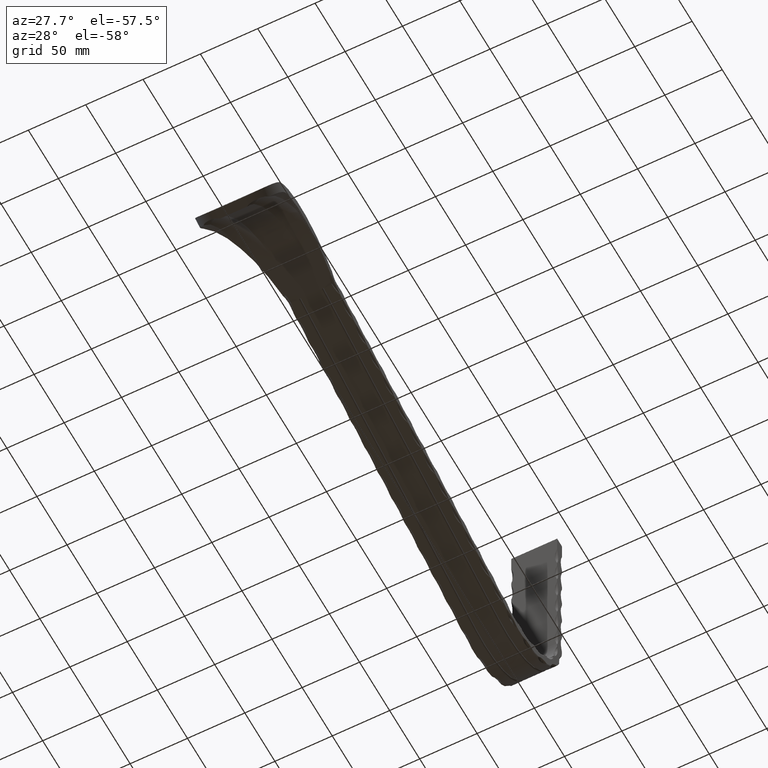
[diagram: clean part render]
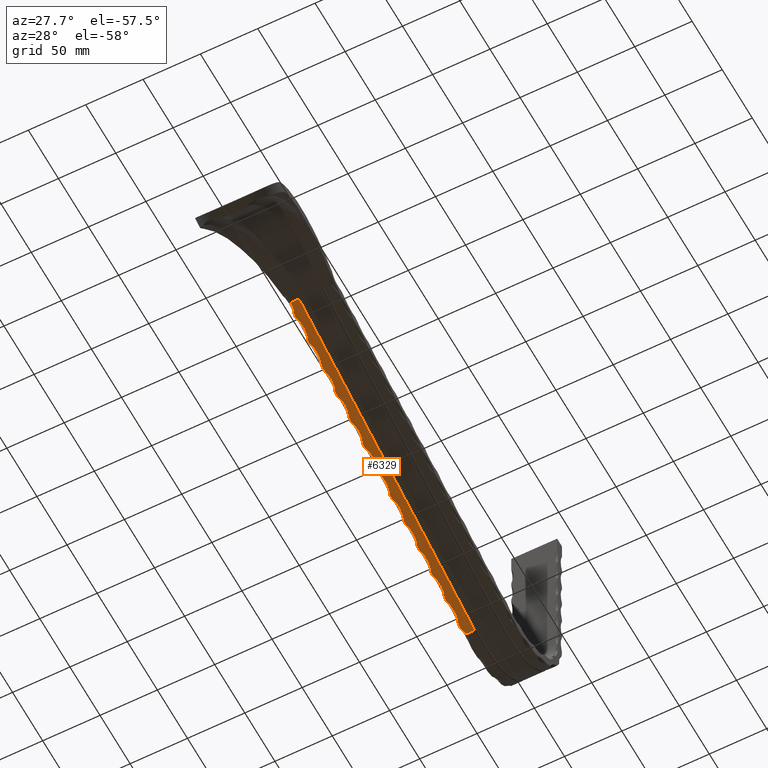
[diagram: same view with one face highlighted and labeled with its STEP entity id]
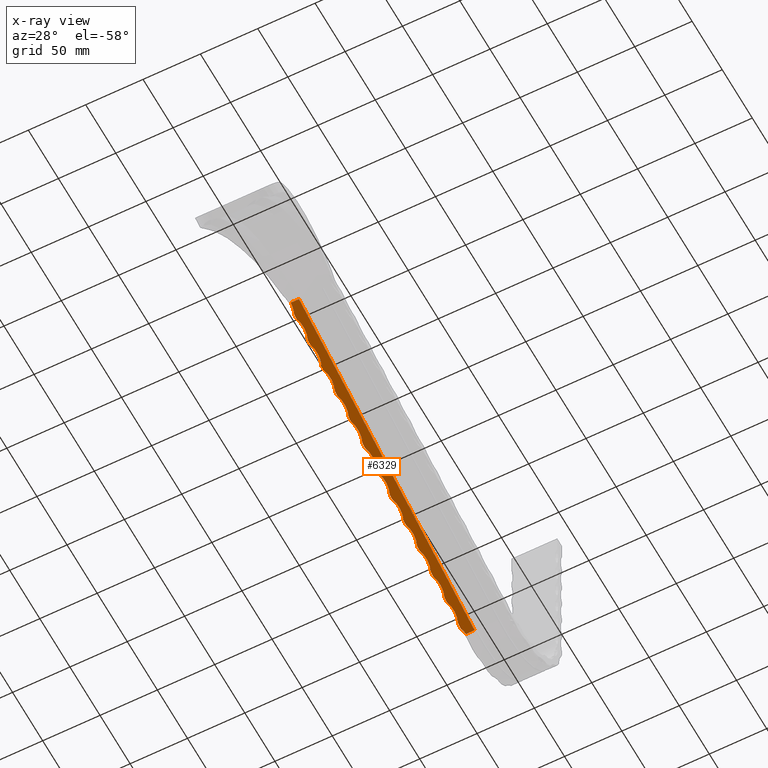
[diagram: x-ray of the same camera — body ghosted, the highlighted face saturated]
A machine part, auxiliary view. The second image highlights one B-rep face of the part: STEP entity #6329.
The next image is the same camera in x-ray: the body ghosted, the highlighted face saturated — about 0% of this face is hidden behind the body in this view.
In plain terms, the highlighted planar face has unit normal (-0, 0.2342, 0.9722).
Its self-contained STEP definition (entity closure, byte-faithful):
#49 = DIRECTION ( 'NONE',  ( -0.0000000000000000000, 0.2341632147695032200, 0.9721972993424801100 ) ) ;
#86 = DIRECTION ( 'NONE',  ( -0.0000000000000000000, 0.2341632147695032200, 0.9721972993424801100 ) ) ;
#180 = DIRECTION ( 'NONE',  ( 0.0000000000000000000, -0.9721972993424798900, 0.2341632147695030800 ) ) ;
#226 = VERTEX_POINT ( 'NONE', #2308 ) ;
#266 = DIRECTION ( 'NONE',  ( 0.0000000000000000000, -0.9721972993424798900, 0.2341632147695033000 ) ) ;
#456 = LINE ( 'NONE', #5302, #3446 ) ;
#465 = DIRECTION ( 'NONE',  ( 1.000000000000000000, 0.0000000000000000000, 0.0000000000000000000 ) ) ;
#500 = CARTESIAN_POINT ( 'NONE',  ( -20.00000000000000000, -500000.1756224110700, 120525.0035319752900 ) ) ;
#584 = CARTESIAN_POINT ( 'NONE',  ( -19.94271883694772600, 416.3907976853084800, -5.213941471125230500 ) ) ;
#591 = ORIENTED_EDGE ( 'NONE', *, *, #7027, .T. ) ;
#599 = CARTESIAN_POINT ( 'NONE',  ( -19.99999999999999300, 298.1933374991426700, 23.25507122156231100 ) ) ;
#600 = CIRCLE ( 'NONE', #5552, 25.99999999999996800 ) ;
#666 = DIRECTION ( 'NONE',  ( -0.0000000000000000000, 0.9721972993424797800, -0.2341632147695031400 ) ) ;
#671 = ORIENTED_EDGE ( 'NONE', *, *, #4128, .T. ) ;
#696 = CARTESIAN_POINT ( 'NONE',  ( -19.00226532571874900, 418.3022749530430200, -5.674339439994314600 ) ) ;
#767 = ORIENTED_EDGE ( 'NONE', *, *, #12402, .T. ) ;
#830 = LINE ( 'NONE', #3471, #5264 ) ;
#859 = VERTEX_POINT ( 'NONE', #13450 ) ;
#897 = VERTEX_POINT ( 'NONE', #12669 ) ;
#913 = ORIENTED_EDGE ( 'NONE', *, *, #1330, .T. ) ;
#931 = ORIENTED_EDGE ( 'NONE', *, *, #4422, .T. ) ;
#1001 = EDGE_CURVE ( 'NONE', #11613, #6406, #10696, .T. ) ;
#1091 = DIRECTION ( 'NONE',  ( -0.0000000000000000000, 0.2341632147695032200, 0.9721972993424801100 ) ) ;
#1204 = DIRECTION ( 'NONE',  ( 0.0000000000000000000, -0.9721972993424798900, 0.2341632147695033000 ) ) ;
#1295 = VERTEX_POINT ( 'NONE', #2390 ) ;
#1330 = EDGE_CURVE ( 'NONE', #13759, #9331, #10497, .T. ) ;
#1345 = CIRCLE ( 'NONE', #8458, 25.99999999999999300 ) ;
#1447 = CARTESIAN_POINT ( 'NONE',  ( -43.99999999999997200, 174.9462666671281300, 52.94033195667425000 ) ) ;
#1591 = AXIS2_PLACEMENT_3D ( 'NONE', #14542, #7293, #180 ) ;
#1611 = LINE ( 'NONE', #5325, #9020 ) ;
#1802 = CARTESIAN_POINT ( 'NONE',  ( -19.99999999999631600, 416.3907976853073500, -5.213941471124927700 ) ) ;
#1838 = EDGE_CURVE ( 'NONE', #9835, #7599, #12524, .T. ) ;
#1847 = ORIENTED_EDGE ( 'NONE', *, *, #12422, .T. ) ;
#1952 = DIRECTION ( 'NONE',  ( 0.0000000000000000000, -0.9721972993424798900, 0.2341632147695030800 ) ) ;
#1958 = VERTEX_POINT ( 'NONE', #9878 ) ;
#2015 = ORIENTED_EDGE ( 'NONE', *, *, #9903, .T. ) ;
#2052 = AXIS2_PLACEMENT_3D ( 'NONE', #13373, #8627, #266 ) ;
#2069 = VERTEX_POINT ( 'NONE', #2916 ) ;
#2142 = EDGE_CURVE ( 'NONE', #1295, #6406, #1611, .T. ) ;
#2175 = CARTESIAN_POINT ( 'NONE',  ( -10.75000000000000000, 421.2985749661347100, -6.396027562301617800 ) ) ;
#2221 = CARTESIAN_POINT ( 'NONE',  ( -20.00000000000000000, 346.8644502153787200, 11.53215836451915200 ) ) ;
#2237 = CARTESIAN_POINT ( 'NONE',  ( -20.00000000000000000, 301.4544110800451300, 22.46960979946033300 ) ) ;
#2252 = DIRECTION ( 'NONE',  ( -0.0000000000000000000, 0.9721972993424797800, -0.2341632147695031400 ) ) ;
#2308 = CARTESIAN_POINT ( 'NONE',  ( -19.99999999999999300, 230.0782787959433600, 39.66124837402382000 ) ) ;
#2390 = CARTESIAN_POINT ( 'NONE',  ( -10.75000000000000000, 129.5362275316165300, 63.87778339167482500 ) ) ;
#2591 = VERTEX_POINT ( 'NONE', #12493 ) ;
#2652 = DIRECTION ( 'NONE',  ( -0.0000000000000000000, 0.2341632147695032200, 0.9721972993424801100 ) ) ;
#2697 = VERTEX_POINT ( 'NONE', #2221 ) ;
#2755 = VERTEX_POINT ( 'NONE', #9392 ) ;
#2883 = EDGE_CURVE ( 'NONE', #2697, #8079, #2897, .T. ) ;
#2897 = CIRCLE ( 'NONE', #3324, 25.99999999999999300 ) ;
#2906 = DIRECTION ( 'NONE',  ( -0.0000000000000000000, 0.9721972993424797800, -0.2341632147695031400 ) ) ;
#2916 = CARTESIAN_POINT ( 'NONE',  ( -20.00000000000000000, 369.5694697831307800, 6.063432647027244800 ) ) ;
#2995 = CARTESIAN_POINT ( 'NONE',  ( -19.61457960205748200, 416.7685898948633400, -5.304936414589742600 ) ) ;
#3012 = DIRECTION ( 'NONE',  ( -0.0000000000000000000, 0.9721972993424797800, -0.2341632147695031400 ) ) ;
#3022 = CIRCLE ( 'NONE', #4404, 25.99999999999996800 ) ;
#3159 = DIRECTION ( 'NONE',  ( -0.0000000000000000000, 0.2341632147695031900, 0.9721972993424800000 ) ) ;
#3194 = DIRECTION ( 'NONE',  ( -0.0000000000000000000, 0.9721972993424797800, -0.2341632147695031400 ) ) ;
#3197 = EDGE_CURVE ( 'NONE', #3507, #13759, #14921, .T. ) ;
#3208 = ORIENTED_EDGE ( 'NONE', *, *, #1838, .T. ) ;
#3216 = DIRECTION ( 'NONE',  ( -0.0000000000000000000, 0.9721972993424797800, -0.2341632147695031400 ) ) ;
#3237 = AXIS2_PLACEMENT_3D ( 'NONE', #10621, #5911, #9534 ) ;
#3253 = CARTESIAN_POINT ( 'NONE',  ( -43.99999999999997200, 401.9964623443076400, -1.746925218159556300 ) ) ;
#3324 = AXIS2_PLACEMENT_3D ( 'NONE', #3903, #7472, #10827 ) ;
#3446 = VECTOR ( 'NONE', #5251, 1000.000000000000300 ) ;
#3471 = CARTESIAN_POINT ( 'NONE',  ( -20.00000000000000000, -500000.1756224110700, 120525.0035319752900 ) ) ;
#3507 = VERTEX_POINT ( 'NONE', #8808 ) ;
#3554 = ORIENTED_EDGE ( 'NONE', *, *, #3197, .T. ) ;
#3794 = EDGE_CURVE ( 'NONE', #11407, #9277, #7139, .T. ) ;
#3804 = ORIENTED_EDGE ( 'NONE', *, *, #2883, .T. ) ;
#3903 = CARTESIAN_POINT ( 'NONE',  ( -43.99999999999997200, 356.5864232088035200, 9.190526216824256500 ) ) ;
#3916 = ORIENTED_EDGE ( 'NONE', *, *, #5261, .T. ) ;
#4112 = CARTESIAN_POINT ( 'NONE',  ( -19.99999999999998900, 129.5362275316453500, 63.87778339167195400 ) ) ;
#4128 = EDGE_CURVE ( 'NONE', #14595, #12290, #830, .T. ) ;
#4176 = CARTESIAN_POINT ( 'NONE',  ( -19.46279126346132000, 417.0636706412373100, -5.376009494338289200 ) ) ;
#4192 = CARTESIAN_POINT ( 'NONE',  ( -20.00000000000000000, 421.2985749661348200, -6.396027562301648000 ) ) ;
#4232 = CARTESIAN_POINT ( 'NONE',  ( -18.30542934712607600, 421.2985749661346500, -6.396027562301675600 ) ) ;
#4404 = AXIS2_PLACEMENT_3D ( 'NONE', #13228, #86, #6137 ) ;
#4422 = EDGE_CURVE ( 'NONE', #15184, #2591, #11372, .T. ) ;
#4444 = DIRECTION ( 'NONE',  ( -0.0000000000000000000, 0.2341632147695032200, 0.9721972993424801100 ) ) ;
#4489 = DIRECTION ( 'NONE',  ( 0.0000000000000000000, -0.9721972993424797800, 0.2341632147695031400 ) ) ;
#4607 = AXIS2_PLACEMENT_3D ( 'NONE', #9124, #14980, #9073 ) ;
#4659 = CARTESIAN_POINT ( 'NONE',  ( -20.00000000000000000, -500000.1756224110700, 120525.0035319752900 ) ) ;
#4660 = DIRECTION ( 'NONE',  ( -0.0000000000000000000, 0.9721972993424797800, -0.2341632147695031400 ) ) ;
#4673 = VECTOR ( 'NONE', #2906, 1000.000000000000300 ) ;
#4709 = DIRECTION ( 'NONE',  ( -0.0000000000000000000, 0.9721972993424797800, -0.2341632147695031400 ) ) ;
#4736 = ORIENTED_EDGE ( 'NONE', *, *, #3794, .T. ) ;
#4747 = VERTEX_POINT ( 'NONE', #6916 ) ;
#4764 = ORIENTED_EDGE ( 'NONE', *, *, #13877, .T. ) ;
#4775 = CARTESIAN_POINT ( 'NONE',  ( -20.00000000000000000, 233.3393523768458000, 38.87578695192183900 ) ) ;
#4776 = CARTESIAN_POINT ( 'NONE',  ( -20.00000000000000000, 187.9293132414553600, 49.81323838687723100 ) ) ;
#4828 = CARTESIAN_POINT ( 'NONE',  ( -19.99999999999998900, 129.5362275316453500, 63.87778339167195400 ) ) ;
#4874 = DIRECTION ( 'NONE',  ( 1.000000000000000000, 0.0000000000000000000, 0.0000000000000000000 ) ) ;
#5011 = DIRECTION ( 'NONE',  ( 0.0000000000000000000, -0.9721972993424798900, 0.2341632147695033000 ) ) ;
#5041 = CARTESIAN_POINT ( 'NONE',  ( -20.00000000000000000, 142.5192741058375500, 60.75068982187525500 ) ) ;
#5251 = DIRECTION ( 'NONE',  ( -0.0000000000000000000, 0.9721972993424797800, -0.2341632147695031400 ) ) ;
#5259 = VECTOR ( 'NONE', #2252, 1000.000000000000300 ) ;
#5261 = EDGE_CURVE ( 'NONE', #10365, #5733, #13780, .T. ) ;
#5264 = VECTOR ( 'NONE', #4660, 1000.000000000000300 ) ;
#5285 = VERTEX_POINT ( 'NONE', #4775 ) ;
#5302 = CARTESIAN_POINT ( 'NONE',  ( -20.00000000000000000, -500000.1756224110700, 120525.0035319752900 ) ) ;
#5325 = CARTESIAN_POINT ( 'NONE',  ( -10.75000000000000000, -500000.1756224110700, 120525.0035319752900 ) ) ;
#5351 = CARTESIAN_POINT ( 'NONE',  ( -19.37727247870511200, 417.2681082223438700, -5.425250282441709300 ) ) ;
#5423 = CARTESIAN_POINT ( 'NONE',  ( -19.99999999999999300, 320.8983570668947300, 17.78634550407040400 ) ) ;
#5476 = ORIENTED_EDGE ( 'NONE', *, *, #13404, .T. ) ;
#5552 = AXIS2_PLACEMENT_3D ( 'NONE', #6774, #1091, #1204 ) ;
#5622 = DIRECTION ( 'NONE',  ( 0.0000000000000000000, -0.9721972993424800000, 0.2341632147695030300 ) ) ;
#5733 = VERTEX_POINT ( 'NONE', #5423 ) ;
#5741 = CARTESIAN_POINT ( 'NONE',  ( -43.99999999999997200, 311.1763840734699300, 20.12797765176543800 ) ) ;
#5911 = DIRECTION ( 'NONE',  ( -0.0000000000000000000, 0.2341632147695032200, 0.9721972993424801100 ) ) ;
#5923 = EDGE_CURVE ( 'NONE', #12541, #226, #600, .T. ) ;
#5949 = CARTESIAN_POINT ( 'NONE',  ( -20.00000000000000000, -500000.1756224110700, 120525.0035319752900 ) ) ;
#5953 = AXIS2_PLACEMENT_3D ( 'NONE', #8978, #14874, #7791 ) ;
#6020 = EDGE_CURVE ( 'NONE', #5733, #11407, #12838, .T. ) ;
#6061 = EDGE_CURVE ( 'NONE', #9817, #9835, #13960, .T. ) ;
#6102 = CARTESIAN_POINT ( 'NONE',  ( -20.00000000000000000, -500000.1756224110700, 120525.0035319752900 ) ) ;
#6137 = DIRECTION ( 'NONE',  ( 0.0000000000000000000, -0.9721972993424798900, 0.2341632147695033000 ) ) ;
#6195 = VECTOR ( 'NONE', #7205, 1000.000000000000300 ) ;
#6198 = CARTESIAN_POINT ( 'NONE',  ( -18.30542934712607600, 421.2985749661346500, -6.396027562301675600 ) ) ;
#6313 = B_SPLINE_CURVE_WITH_KNOTS ( 'NONE', 3,
 ( #1802, #584, #10218, #8889, #12546, #10059, #2995, #4176, #5351, #14839, #696, #13752, #7752, #4232 ),
 .UNSPECIFIED., .F., .F.,
 ( 4, 2, 2, 2, 2, 2, 4 ),
 ( 7.718187438730918600E-005, 0.0002484436253418406900, 0.0004197053762963721900, 0.0007622288782054290500, 0.001447275882023538000, 0.002817369889659755700, 0.005557557904932353300 ),
 .UNSPECIFIED. ) ;
#6329 = ADVANCED_FACE ( 'NONE', ( #8407 ), #7862, .F. ) ;
#6364 = VECTOR ( 'NONE', #8847, 1000.000000000000300 ) ;
#6373 = EDGE_CURVE ( 'NONE', #11587, #14484, #1345, .T. ) ;
#6406 = VERTEX_POINT ( 'NONE', #2175 ) ;
#6579 = DIRECTION ( 'NONE',  ( -0.0000000000000000000, 0.9721972993424797800, -0.2341632147695031400 ) ) ;
#6671 = ORIENTED_EDGE ( 'NONE', *, *, #11113, .F. ) ;
#6752 = LINE ( 'NONE', #500, #10460 ) ;
#6774 = CARTESIAN_POINT ( 'NONE',  ( -43.99999999999997200, 220.3563058025185600, 42.00288052171885800 ) ) ;
#6805 = VECTOR ( 'NONE', #4709, 1000.000000000000300 ) ;
#6832 = CARTESIAN_POINT ( 'NONE',  ( -20.00000000000000000, -500000.1756224110700, 120525.0035319752900 ) ) ;
#6916 = CARTESIAN_POINT ( 'NONE',  ( -20.00000000000000000, 278.7493915122930700, 27.93833551695224000 ) ) ;
#7027 = EDGE_CURVE ( 'NONE', #2591, #14595, #10216, .T. ) ;
#7104 = VERTEX_POINT ( 'NONE', #599 ) ;
#7138 = EDGE_CURVE ( 'NONE', #8079, #2069, #9475, .T. ) ;
#7139 = CIRCLE ( 'NONE', #3237, 25.99999999999999300 ) ;
#7184 = LINE ( 'NONE', #4659, #6805 ) ;
#7205 = DIRECTION ( 'NONE',  ( -0.0000000000000000000, 0.9721972993424797800, -0.2341632147695031400 ) ) ;
#7258 = CARTESIAN_POINT ( 'NONE',  ( -19.99999999999999300, 275.4883179313906100, 28.72379693905421800 ) ) ;
#7293 = DIRECTION ( 'NONE',  ( -0.0000000000000000000, 0.2341632147695032200, 0.9721972993424801100 ) ) ;
#7328 = ORIENTED_EDGE ( 'NONE', *, *, #14759, .T. ) ;
#7347 = VECTOR ( 'NONE', #465, 1000.000000000000000 ) ;
#7397 = CARTESIAN_POINT ( 'NONE',  ( -43.99999999999997200, 288.4713645057178700, 25.59670336925734400 ) ) ;
#7444 = CARTESIAN_POINT ( 'NONE',  ( -20.00000000000000000, -500000.1756224110700, 120525.0035319752900 ) ) ;
#7472 = DIRECTION ( 'NONE',  ( -0.0000000000000000000, 0.2341632147695032200, 0.9721972993424801100 ) ) ;
#7492 = DIRECTION ( 'NONE',  ( -0.0000000000000000000, 0.2341632147695032200, 0.9721972993424801100 ) ) ;
#7522 = CARTESIAN_POINT ( 'NONE',  ( -20.00000000000000000, -500000.1756224110700, 120525.0035319752900 ) ) ;
#7523 = ORIENTED_EDGE ( 'NONE', *, *, #1001, .T. ) ;
#7599 = VERTEX_POINT ( 'NONE', #5041 ) ;
#7727 = CIRCLE ( 'NONE', #4607, 25.99999999999999300 ) ;
#7728 = EDGE_CURVE ( 'NONE', #14484, #897, #8919, .T. ) ;
#7737 = ORIENTED_EDGE ( 'NONE', *, *, #13177, .T. ) ;
#7752 = CARTESIAN_POINT ( 'NONE',  ( -18.44609679442875500, 420.4302709489027700, -6.186888059234685300 ) ) ;
#7791 = DIRECTION ( 'NONE',  ( 0.0000000000000000000, -0.9721972993424798900, 0.2341632147695033000 ) ) ;
#7862 = PLANE ( 'NONE',  #11894 ) ;
#7866 = EDGE_CURVE ( 'NONE', #5285, #3507, #12609, .T. ) ;
#8041 = CARTESIAN_POINT ( 'NONE',  ( -20.00000000000000000, 256.0443719445410100, 33.40706123444414300 ) ) ;
#8065 = CARTESIAN_POINT ( 'NONE',  ( -20.00000000000000000, -500000.1756224110700, 120525.0035319752900 ) ) ;
#8079 = VERTEX_POINT ( 'NONE', #14211 ) ;
#8278 = CARTESIAN_POINT ( 'NONE',  ( -19.99999999999999300, 184.6682396605529300, 50.59869980897921200 ) ) ;
#8407 = FACE_OUTER_BOUND ( 'NONE', #14771, .T. ) ;
#8411 = ORIENTED_EDGE ( 'NONE', *, *, #11071, .T. ) ;
#8419 = VECTOR ( 'NONE', #10800, 1000.000000000000300 ) ;
#8458 = AXIS2_PLACEMENT_3D ( 'NONE', #3253, #4444, #5622 ) ;
#8627 = DIRECTION ( 'NONE',  ( -0.0000000000000000000, 0.2341632147695032200, 0.9721972993424801100 ) ) ;
#8665 = ORIENTED_EDGE ( 'NONE', *, *, #6061, .T. ) ;
#8799 = CIRCLE ( 'NONE', #14535, 25.99999999999999600 ) ;
#8808 = CARTESIAN_POINT ( 'NONE',  ( -19.99999999999999300, 252.7832983636953900, 34.19252265653191400 ) ) ;
#8847 = DIRECTION ( 'NONE',  ( -0.0000000000000000000, 0.9721972993424797800, -0.2341632147695031400 ) ) ;
#8889 = CARTESIAN_POINT ( 'NONE',  ( -19.80367331235003200, 416.4936941504428800, -5.238725089718466100 ) ) ;
#8919 = LINE ( 'NONE', #15090, #15025 ) ;
#8978 = CARTESIAN_POINT ( 'NONE',  ( -43.99999999999997200, 243.0613253702706200, 36.53415480422695100 ) ) ;
#9020 = VECTOR ( 'NONE', #666, 1000.000000000000300 ) ;
#9029 = VECTOR ( 'NONE', #3216, 1000.000000000000300 ) ;
#9073 = DIRECTION ( 'NONE',  ( 0.0000000000000000000, -0.9721972993424800000, 0.2341632147695029700 ) ) ;
#9124 = CARTESIAN_POINT ( 'NONE',  ( -43.99999999999997200, 379.2914427765555800, 3.721800499332350600 ) ) ;
#9172 = ORIENTED_EDGE ( 'NONE', *, *, #2142, .F. ) ;
#9214 = ORIENTED_EDGE ( 'NONE', *, *, #9797, .T. ) ;
#9246 = ORIENTED_EDGE ( 'NONE', *, *, #11234, .T. ) ;
#9277 = VERTEX_POINT ( 'NONE', #13058 ) ;
#9324 = EDGE_CURVE ( 'NONE', #1958, #1295, #14817, .T. ) ;
#9331 = VERTEX_POINT ( 'NONE', #7258 ) ;
#9392 = CARTESIAN_POINT ( 'NONE',  ( -19.99999999999999300, 389.0134157699803800, 1.380168351637317100 ) ) ;
#9475 = LINE ( 'NONE', #12456, #4673 ) ;
#9507 = ORIENTED_EDGE ( 'NONE', *, *, #7728, .T. ) ;
#9534 = DIRECTION ( 'NONE',  ( 0.0000000000000000000, -0.9721972993424800000, 0.2341632147695029700 ) ) ;
#9637 = ORIENTED_EDGE ( 'NONE', *, *, #7866, .T. ) ;
#9760 = DIRECTION ( 'NONE',  ( 0.0000000000000000000, -0.9721972993424798900, 0.2341632147695030500 ) ) ;
#9775 = CARTESIAN_POINT ( 'NONE',  ( -20.00000000000000000, 392.2744893508828500, 0.5947069295353379900 ) ) ;
#9797 = EDGE_CURVE ( 'NONE', #9331, #4747, #7184, .T. ) ;
#9817 = VERTEX_POINT ( 'NONE', #11734 ) ;
#9835 = VERTEX_POINT ( 'NONE', #14137 ) ;
#9878 = CARTESIAN_POINT ( 'NONE',  ( -11.79694367221646800, 129.5362282290395800, 63.87778308176373100 ) ) ;
#9884 = DIRECTION ( 'NONE',  ( -0.0000000000000000000, 0.9721972993424797800, -0.2341632147695031400 ) ) ;
#9903 = EDGE_CURVE ( 'NONE', #12290, #859, #3022, .T. ) ;
#9994 = VECTOR ( 'NONE', #4874, 1000.000000000000000 ) ;
#10059 = CARTESIAN_POINT ( 'NONE',  ( -19.66846699989502100, 416.6720632881704200, -5.281687038615048700 ) ) ;
#10216 = CIRCLE ( 'NONE', #11216, 25.99999999999996800 ) ;
#10218 = CARTESIAN_POINT ( 'NONE',  ( -19.88949507855169700, 416.4209045540172300, -5.221193004500454600 ) ) ;
#10333 = EDGE_CURVE ( 'NONE', #226, #5285, #13276, .T. ) ;
#10365 = VERTEX_POINT ( 'NONE', #2237 ) ;
#10460 = VECTOR ( 'NONE', #3012, 1000.000000000000300 ) ;
#10497 = CIRCLE ( 'NONE', #2052, 25.99999999999996800 ) ;
#10621 = CARTESIAN_POINT ( 'NONE',  ( -43.99999999999997200, 333.8814036412219900, 14.65925193428774200 ) ) ;
#10696 = LINE ( 'NONE', #4192, #14401 ) ;
#10800 = DIRECTION ( 'NONE',  ( -0.0000000000000000000, 0.9721972993424797800, -0.2341632147695031400 ) ) ;
#10827 = DIRECTION ( 'NONE',  ( 0.0000000000000000000, -0.9721972993424800000, 0.2341632147695029700 ) ) ;
#10890 = ORIENTED_EDGE ( 'NONE', *, *, #5923, .T. ) ;
#11071 = EDGE_CURVE ( 'NONE', #2755, #11587, #12145, .T. ) ;
#11113 = EDGE_CURVE ( 'NONE', #9817, #1958, #11602, .T. ) ;
#11160 = CARTESIAN_POINT ( 'NONE',  ( -20.00000000000000000, -500000.1756224110700, 120525.0035319752900 ) ) ;
#11216 = AXIS2_PLACEMENT_3D ( 'NONE', #1447, #2652, #5011 ) ;
#11234 = EDGE_CURVE ( 'NONE', #2069, #2755, #7727, .T. ) ;
#11372 = LINE ( 'NONE', #11160, #6364 ) ;
#11407 = VERTEX_POINT ( 'NONE', #13241 ) ;
#11416 = VECTOR ( 'NONE', #9884, 1000.000000000000300 ) ;
#11587 = VERTEX_POINT ( 'NONE', #9775 ) ;
#11602 = LINE ( 'NONE', #4112, #7347 ) ;
#11613 = VERTEX_POINT ( 'NONE', #6198 ) ;
#11643 = ORIENTED_EDGE ( 'NONE', *, *, #6020, .T. ) ;
#11734 = CARTESIAN_POINT ( 'NONE',  ( -18.00000000000000000, 129.5362275316202300, 63.87778339168309600 ) ) ;
#11765 = CARTESIAN_POINT ( 'NONE',  ( -20.00000000000000000, 210.6343328090937300, 44.34451266941374600 ) ) ;
#11811 = ORIENTED_EDGE ( 'NONE', *, *, #9324, .F. ) ;
#11894 = AXIS2_PLACEMENT_3D ( 'NONE', #8065, #3159, #4489 ) ;
#12145 = LINE ( 'NONE', #7522, #13645 ) ;
#12289 = LINE ( 'NONE', #5949, #5259 ) ;
#12290 = VERTEX_POINT ( 'NONE', #4776 ) ;
#12402 = EDGE_CURVE ( 'NONE', #9277, #2697, #456, .T. ) ;
#12422 = EDGE_CURVE ( 'NONE', #897, #11613, #6313, .T. ) ;
#12456 = CARTESIAN_POINT ( 'NONE',  ( -20.00000000000000000, -500000.1756224110700, 120525.0035319752900 ) ) ;
#12493 = CARTESIAN_POINT ( 'NONE',  ( -20.00000000000000000, 165.2242936737033000, 55.28196410436913800 ) ) ;
#12507 = DIRECTION ( 'NONE',  ( 1.000000000000000000, 0.0000000000000000000, 0.0000000000000000000 ) ) ;
#12524 = LINE ( 'NONE', #14414, #11416 ) ;
#12525 = ORIENTED_EDGE ( 'NONE', *, *, #10333, .T. ) ;
#12541 = VERTEX_POINT ( 'NONE', #11765 ) ;
#12546 = CARTESIAN_POINT ( 'NONE',  ( -19.76740085419635700, 416.5373587941956500, -5.249242145614049400 ) ) ;
#12548 = AXIS2_PLACEMENT_3D ( 'NONE', #12753, #14990, #1952 ) ;
#12609 = CIRCLE ( 'NONE', #5953, 25.99999999999996800 ) ;
#12669 = CARTESIAN_POINT ( 'NONE',  ( -19.99999999999631600, 416.3907976853073500, -5.213941471124927700 ) ) ;
#12753 = CARTESIAN_POINT ( 'NONE',  ( -43.99999999999997200, 152.2412470992623800, 58.40905767418036700 ) ) ;
#12838 = LINE ( 'NONE', #7444, #8419 ) ;
#12895 = DIRECTION ( 'NONE',  ( 0.0000000000000000000, -0.9721972993424800000, 0.2341632147695029700 ) ) ;
#13058 = CARTESIAN_POINT ( 'NONE',  ( -19.99999999999999300, 343.6033766346467900, 12.31761978659271000 ) ) ;
#13177 = EDGE_CURVE ( 'NONE', #7104, #10365, #6752, .T. ) ;
#13228 = CARTESIAN_POINT ( 'NONE',  ( -43.99999999999997200, 197.6512862348801900, 47.47160623918234300 ) ) ;
#13241 = CARTESIAN_POINT ( 'NONE',  ( -20.00000000000000000, 324.1594306477971900, 17.00088408198263700 ) ) ;
#13276 = LINE ( 'NONE', #6832, #9029 ) ;
#13306 = ORIENTED_EDGE ( 'NONE', *, *, #7138, .T. ) ;
#13373 = CARTESIAN_POINT ( 'NONE',  ( -43.99999999999997200, 265.7663449379658100, 31.06542908674925100 ) ) ;
#13404 = EDGE_CURVE ( 'NONE', #4747, #7104, #8799, .T. ) ;
#13440 = CARTESIAN_POINT ( 'NONE',  ( -19.99999999999999300, 411.7184353377324400, -4.088557365854589100 ) ) ;
#13450 = CARTESIAN_POINT ( 'NONE',  ( -19.99999999999999300, 207.3732592283049900, 45.12997409148730600 ) ) ;
#13645 = VECTOR ( 'NONE', #6579, 1000.000000000000300 ) ;
#13752 = CARTESIAN_POINT ( 'NONE',  ( -18.63465098591766300, 419.5702465648153600, -5.979742786670848400 ) ) ;
#13759 = VERTEX_POINT ( 'NONE', #8041 ) ;
#13770 = CIRCLE ( 'NONE', #12548, 25.99999999999996800 ) ;
#13780 = CIRCLE ( 'NONE', #15285, 25.99999999999999300 ) ;
#13877 = EDGE_CURVE ( 'NONE', #859, #12541, #12289, .T. ) ;
#13888 = CARTESIAN_POINT ( 'NONE',  ( -19.99999999999999300, 161.9632200926871800, 56.06742552648533000 ) ) ;
#13960 = CIRCLE ( 'NONE', #1591, 25.99999999999996800 ) ;
#14137 = CARTESIAN_POINT ( 'NONE',  ( -20.00000000000000000, 139.2582005251056800, 61.53615124394906400 ) ) ;
#14211 = CARTESIAN_POINT ( 'NONE',  ( -19.99999999999999300, 366.3083962022283200, 6.848894069129224600 ) ) ;
#14241 = ORIENTED_EDGE ( 'NONE', *, *, #6373, .T. ) ;
#14401 = VECTOR ( 'NONE', #12507, 1000.000000000000000 ) ;
#14414 = CARTESIAN_POINT ( 'NONE',  ( -20.00000000000000000, -500000.1756224110700, 120525.0035319752900 ) ) ;
#14484 = VERTEX_POINT ( 'NONE', #13440 ) ;
#14535 = AXIS2_PLACEMENT_3D ( 'NONE', #7397, #7492, #9760 ) ;
#14542 = CARTESIAN_POINT ( 'NONE',  ( -43.99999999999997200, 129.5362275316808500, 63.87778339164395900 ) ) ;
#14595 = VERTEX_POINT ( 'NONE', #8278 ) ;
#14759 = EDGE_CURVE ( 'NONE', #7599, #15184, #13770, .T. ) ;
#14771 = EDGE_LOOP ( 'NONE', ( #6671, #8665, #3208, #7328, #931, #591, #671, #2015, #4764, #10890, #12525, #9637, #3554, #913, #9214, #5476, #7737, #3916, #11643, #4736, #767, #3804, #13306, #9246, #8411, #14241, #9507, #1847, #7523, #9172, #11811 ) ) ;
#14817 = LINE ( 'NONE', #4828, #9994 ) ;
#14839 = CARTESIAN_POINT ( 'NONE',  ( -19.13774570180509500, 417.8838543641749700, -5.573558754549782000 ) ) ;
#14874 = DIRECTION ( 'NONE',  ( -0.0000000000000000000, 0.2341632147695032200, 0.9721972993424801100 ) ) ;
#14921 = LINE ( 'NONE', #6102, #6195 ) ;
#14980 = DIRECTION ( 'NONE',  ( -0.0000000000000000000, 0.2341632147695032200, 0.9721972993424801100 ) ) ;
#14990 = DIRECTION ( 'NONE',  ( -0.0000000000000000000, 0.2341632147695032200, 0.9721972993424801100 ) ) ;
#15025 = VECTOR ( 'NONE', #3194, 1000.000000000000300 ) ;
#15090 = CARTESIAN_POINT ( 'NONE',  ( -20.00000000000000000, -500000.1756224110700, 120525.0035319752900 ) ) ;
#15184 = VERTEX_POINT ( 'NONE', #13888 ) ;
#15285 = AXIS2_PLACEMENT_3D ( 'NONE', #5741, #49, #12895 ) ;